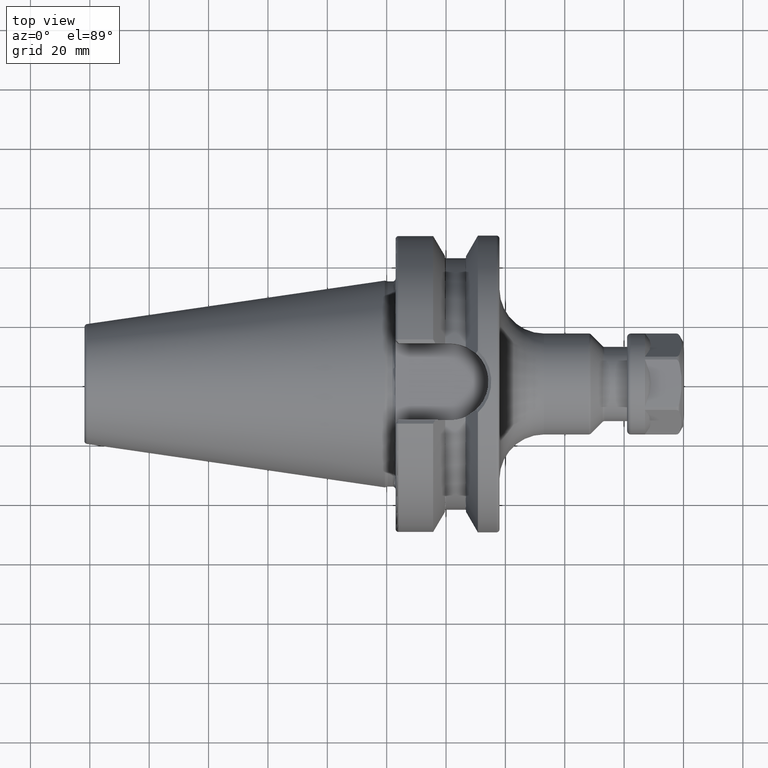
[diagram: clean part render]
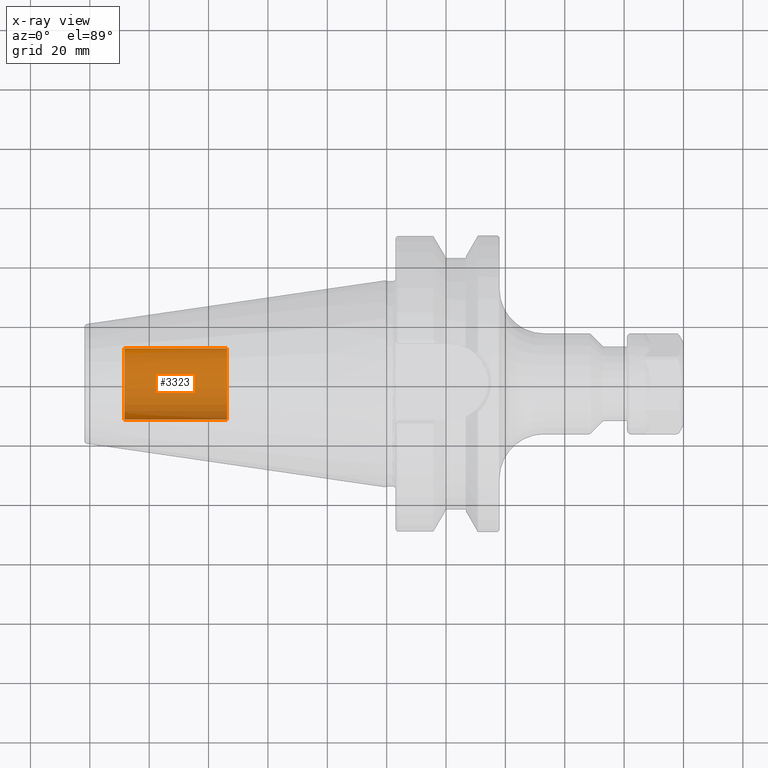
[diagram: x-ray — body ghosted, one internal face saturated and labeled with its STEP entity id]
A machine part, top view, then the same camera in x-ray: the body is ghosted and one INTERNAL B-rep face — a face not visible from any outside direction — is saturated and labeled: STEP entity #3323.
In plain terms, the highlighted cylindrical surface (edge-blend (fillet) strip) has radius 12.0032 mm, axis along (1, 0, 0).
Its self-contained STEP definition (entity closure, byte-faithful):
#3258=CARTESIAN_POINT('',(-8.835E1,0.E0,0.E0));
#3259=DIRECTION('',(-1.E0,0.E0,0.E0));
#3260=DIRECTION('',(0.E0,1.E0,0.E0));
#3261=AXIS2_PLACEMENT_3D('',#3258,#3259,#3260);
#3263=DIRECTION('',(1.E0,0.E0,0.E0));
#3264=VECTOR('',#3263,3.455E1);
#3265=CARTESIAN_POINT('',(-8.835E1,-1.200325E1,0.E0));
#3266=LINE('',#3265,#3264);
#3272=DIRECTION('',(1.E0,0.E0,0.E0));
#3273=VECTOR('',#3272,3.455E1);
#3274=CARTESIAN_POINT('',(-8.835E1,1.200325E1,0.E0));
#3275=LINE('',#3274,#3273);
#3281=CARTESIAN_POINT('',(-5.38E1,0.E0,0.E0));
#3282=DIRECTION('',(1.E0,0.E0,0.E0));
#3283=DIRECTION('',(0.E0,-1.E0,0.E0));
#3284=AXIS2_PLACEMENT_3D('',#3281,#3282,#3283);
#3296=CARTESIAN_POINT('',(-8.835E1,1.200325E1,0.E0));
#3297=CARTESIAN_POINT('',(-8.835E1,-1.200325E1,0.E0));
#3298=VERTEX_POINT('',#3296);
#3299=VERTEX_POINT('',#3297);
#3300=CARTESIAN_POINT('',(-5.38E1,1.200325E1,0.E0));
#3301=CARTESIAN_POINT('',(-5.38E1,-1.200325E1,0.E0));
#3302=VERTEX_POINT('',#3300);
#3303=VERTEX_POINT('',#3301);
#3308=CARTESIAN_POINT('',(-8.835E1,0.E0,0.E0));
#3309=DIRECTION('',(1.E0,0.E0,0.E0));
#3310=DIRECTION('',(0.E0,1.E0,0.E0));
#3311=AXIS2_PLACEMENT_3D('',#3308,#3309,#3310);
#3312=CYLINDRICAL_SURFACE('',#3311,1.200325E1);
#3314=ORIENTED_EDGE('',*,*,#3313,.T.);
#3316=ORIENTED_EDGE('',*,*,#3315,.T.);
#3318=ORIENTED_EDGE('',*,*,#3317,.T.);
#3320=ORIENTED_EDGE('',*,*,#3319,.F.);
#3321=EDGE_LOOP('',(#3314,#3316,#3318,#3320));
#3322=FACE_OUTER_BOUND('',#3321,.F.);
#3323=ADVANCED_FACE('',(#3322),#3312,.T.);
#3262=CIRCLE('',#3261,1.200325E1);
#3285=CIRCLE('',#3284,1.200325E1);
#3313=EDGE_CURVE('',#3298,#3299,#3262,.T.);
#3315=EDGE_CURVE('',#3299,#3303,#3266,.T.);
#3317=EDGE_CURVE('',#3303,#3302,#3285,.T.);
#3319=EDGE_CURVE('',#3298,#3302,#3275,.T.);